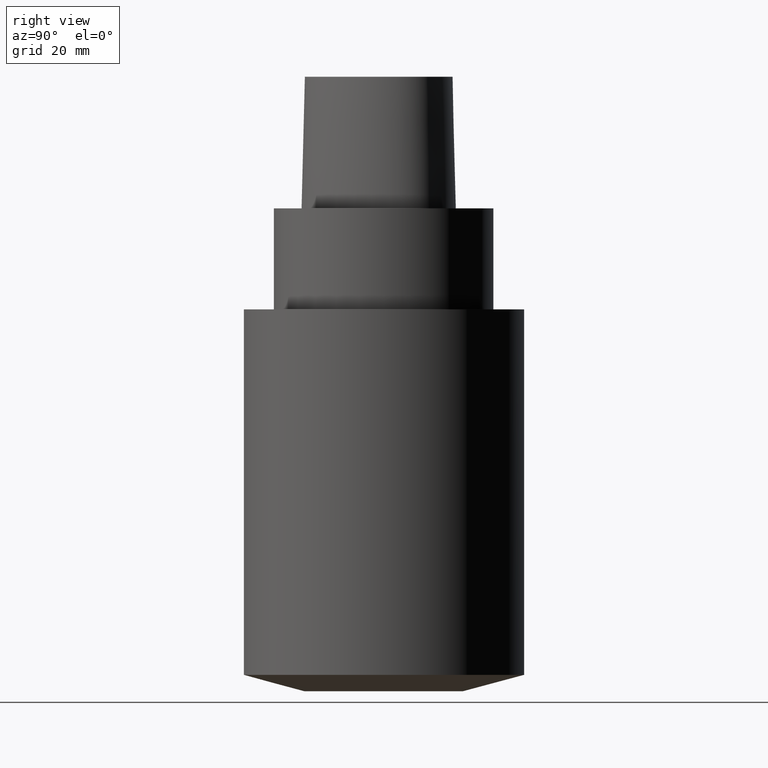
[diagram: clean part render]
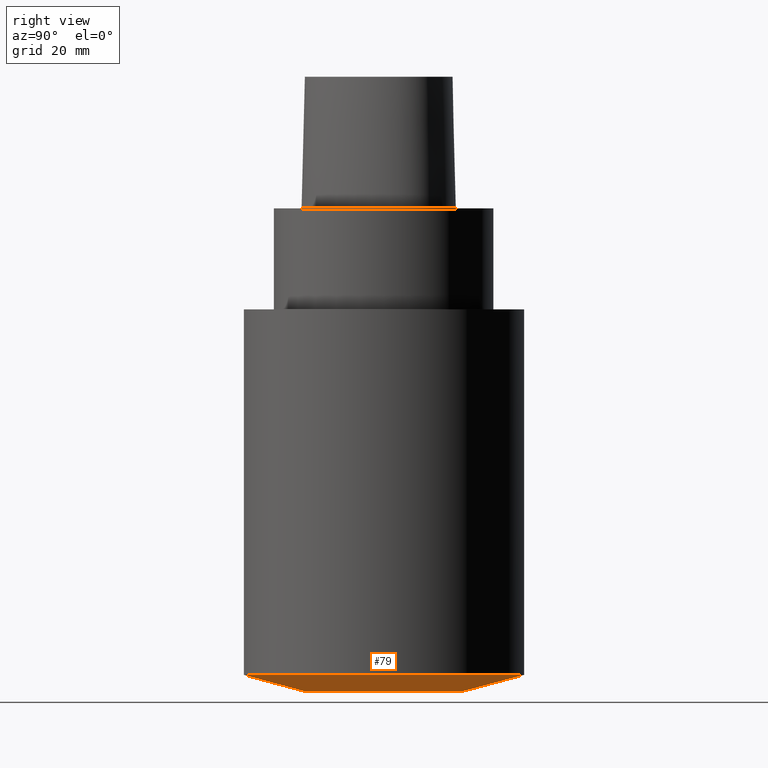
[diagram: same view with one face highlighted and labeled with its STEP entity id]
A machine part, right view. The second image highlights one B-rep face of the part: STEP entity #79.
In plain terms, the highlighted conical surface has half-angle 75 deg.
Its self-contained STEP definition (entity closure, byte-faithful):
#79=ADVANCED_FACE('',(#93,#94),#95,.T.);
#93=FACE_BOUND('',#497,.T.);
#94=FACE_BOUND('',#498,.T.);
#95=CONICAL_SURFACE('',#499,25.0000000010224,1.30899693875818);
#497=EDGE_LOOP('',(#526));
#498=EDGE_LOOP('',(#527));
#499=AXIS2_PLACEMENT_3D('',#528,#529,#530);
#526=ORIENTED_EDGE('',*,*,#551,.F.);
#527=ORIENTED_EDGE('',*,*,#550,.T.);
#528=CARTESIAN_POINT('',(6.62070730292237E-015,1.32414146058447E-014,-108.124355651474));
#529=DIRECTION('',(-6.12323399573677E-017,-1.22464679914735E-016,1.0));
#530=DIRECTION('',(-1.23259516440783E-032,1.0,1.22464679914735E-016));
#550=EDGE_CURVE('',#561,#561,#562,.T.);
#551=EDGE_CURVE('',#563,#563,#564,.T.);
#561=VERTEX_POINT('',#722);
#562=CIRCLE('',#723,18.0000000020448);
#563=VERTEX_POINT('',#724);
#564=CIRCLE('',#725,32.0);
#722=CARTESIAN_POINT('',(6.73555739531044E-015,18.0000000020448,-110.0));
#723=AXIS2_PLACEMENT_3D('',#733,#734,#735);
#724=CARTESIAN_POINT('',(6.50585721053429E-015,32.0,-106.248711302947));
#725=AXIS2_PLACEMENT_3D('',#736,#737,#738);
#733=CARTESIAN_POINT('',(6.73555739531044E-015,1.34711147906209E-014,-110.0));
#734=DIRECTION('',(-6.12323399573677E-017,-1.22464679914735E-016,1.0));
#735=DIRECTION('',(-1.23259516440783E-032,1.0,1.22464679914735E-016));
#736=CARTESIAN_POINT('',(6.50585721053429E-015,1.30117144210686E-014,-106.248711302947));
#737=DIRECTION('',(-6.12323399573677E-017,-1.22464679914735E-016,1.0));
#738=DIRECTION('',(-1.23259516440783E-032,1.0,1.22464679914735E-016));